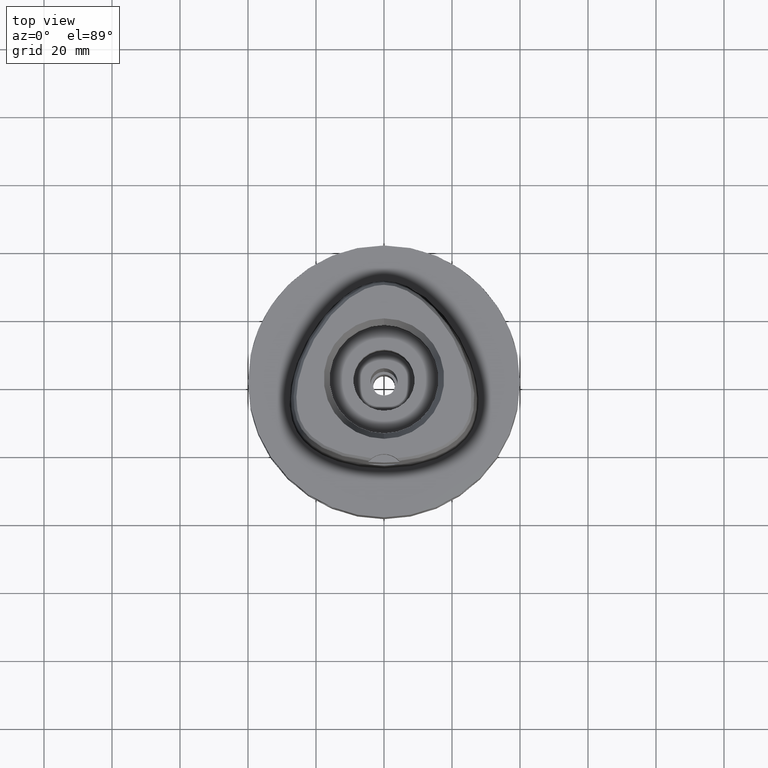
[diagram: clean part render]
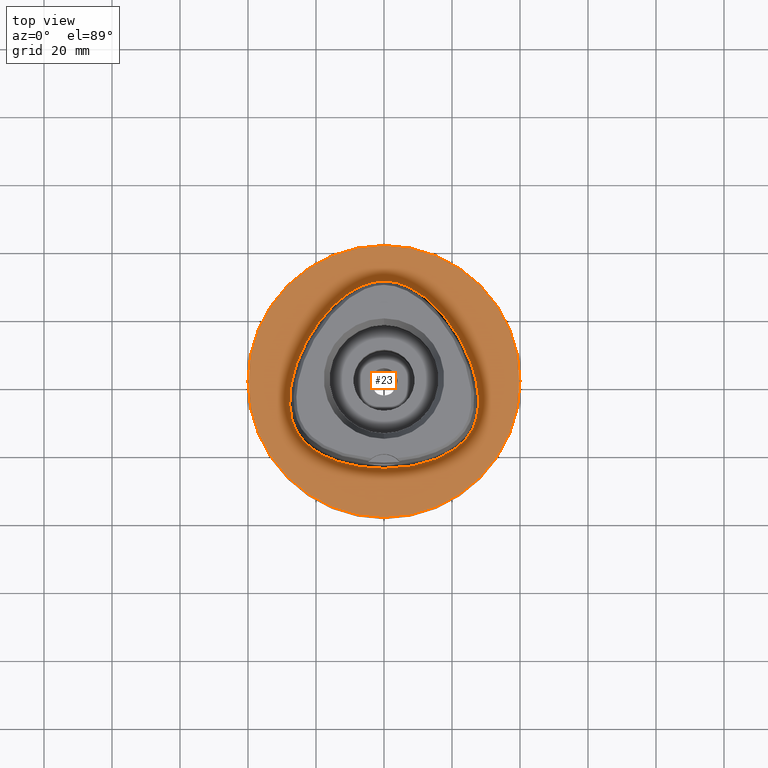
[diagram: same view with one face highlighted and labeled with its STEP entity id]
A machine part, top view. The second image highlights one B-rep face of the part: STEP entity #23.
In plain terms, the highlighted planar face has unit normal (0, 0, -1).
Its self-contained STEP definition (entity closure, byte-faithful):
#23 = ADVANCED_FACE ( 'NONE', ( #2173, #165 ), #3060, .F. ) ;
#165 = FACE_BOUND ( 'NONE', #2454, .T. ) ;
#216 = CARTESIAN_POINT ( 'NONE',  ( -27.10051712365357801, -11.41106443887994537, 2.073622526617933948E-06 ) ) ;
#221 = ORIENTED_EDGE ( 'NONE', *, *, #3537, .F. ) ;
#237 = CARTESIAN_POINT ( 'NONE',  ( 17.75297947113849872, 19.52218746662741466, 2.090457267088074306E-06 ) ) ;
#246 = VERTEX_POINT ( 'NONE', #2687 ) ;
#318 = CARTESIAN_POINT ( 'NONE',  ( -17.75297947146765409, 19.52218746690073914, 2.073622526617933948E-06 ) ) ;
#357 = CARTESIAN_POINT ( 'NONE',  ( 13.21796077093073762, 24.04386714789172075, 2.090457267088074306E-06 ) ) ;
#587 = CARTESIAN_POINT ( 'NONE',  ( 25.63812385324870746, -14.80217770819496437, 2.090457267088074306E-06 ) ) ;
#596 = CARTESIAN_POINT ( 'NONE',  ( -27.85475984545929506, -5.337968751303932891, 2.073622526617933948E-06 ) ) ;
#609 = CARTESIAN_POINT ( 'NONE',  ( 27.85475984503381142, -5.337968751314384974, 2.090457267088074306E-06 ) ) ;
#729 = CARTESIAN_POINT ( 'NONE',  ( -21.42129056213888916, -19.59889644290716504, 2.073622526617933948E-06 ) ) ;
#738 = CARTESIAN_POINT ( 'NONE',  ( 11.74025984109356813, -24.13566401196895228, 2.090457267088074306E-06 ) ) ;
#901 = DIRECTION ( 'NONE',  ( 0.0000000000000000000, 1.000000000000000000, 0.0000000000000000000 ) ) ;
#925 = CARTESIAN_POINT ( 'NONE',  ( 0.0000000000000000000, 1.303514053011999969E-14, 0.0000000000000000000 ) ) ;
#1040 = CARTESIAN_POINT ( 'NONE',  ( -3.149084863313429850, 29.34015619903684424, 2.073622526617933948E-06 ) ) ;
#1090 = CARTESIAN_POINT ( 'NONE',  ( -6.262496924630868378, 28.35083003011367353, 2.073622526617933948E-06 ) ) ;
#1147 = CARTESIAN_POINT ( 'NONE',  ( -11.74025984121052701, -24.13566401238166748, 2.073622526617933948E-06 ) ) ;
#1162 = CIRCLE ( 'NONE', #4510, 40.00000000000000000 ) ;
#1227 = CARTESIAN_POINT ( 'NONE',  ( -6.691850456699824257, -25.24546869848185437, 2.073622526617933948E-06 ) ) ;
#1298 = DIRECTION ( 'NONE',  ( 0.0000000000000000000, 0.0000000000000000000, -1.000000000000000000 ) ) ;
#1380 = CARTESIAN_POINT ( 'NONE',  ( 27.68378748635324271, -8.751933587154015370, 2.090457267088074306E-06 ) ) ;
#1386 = EDGE_CURVE ( 'NONE', #4582, #3107, #4573, .T. ) ;
#1406 = CARTESIAN_POINT ( 'NONE',  ( 22.33885461223361801, 12.89734372375762383, 2.090457267088074306E-06 ) ) ;
#1417 = CARTESIAN_POINT ( 'NONE',  ( -26.34912732462742824, -13.39455076038635539, 2.073622526617933948E-06 ) ) ;
#1436 = CARTESIAN_POINT ( 'NONE',  ( 3.426724478364000331E-11, 29.57499999998999840, 6.809367884367999544E-14 ) ) ;
#1550 = CARTESIAN_POINT ( 'NONE',  ( 6.691850456640912270, -25.24546869806962235, 2.090457267088074306E-06 ) ) ;
#1560 = B_SPLINE_CURVE_WITH_KNOTS ( 'NONE', 3,
 ( #3088, #3893, #1040, #1090, #3790, #2300, #318, #1908, #3502, #4186, #3408, #596, #2204, #216, #1417, #3017, #4612, #4387, #729, #1617, #2379, #1147, #1227, #1991, #3245 ),
 .UNSPECIFIED., .F., .F.,
 ( 4, 1, 1, 1, 1, 1, 1, 1, 1, 1, 1, 1, 1, 1, 1, 1, 1, 1, 1, 1, 1, 1, 4 ),
 ( 0.0000000000000000000, 0.04166666666708999933, 0.08333333333372000551, 0.1250000000004000134, 0.1666666666670000019, 0.2500000000002999823, 0.3333333333335000148, 0.4166666666668999985, 0.4583333333333999837, 0.5000000000001000311, 0.5416666666667999674, 0.5833333333333000637, 0.6250000000000000000, 0.6458333333333000637, 0.6666666666667000474, 0.6875000000000000000, 0.7083333333332000326, 0.7499999999999000799, 0.7916666666666000163, 0.8333333333331000015, 0.8749999999998000488, 0.9166666666664999852, 1.000000000000000000 ),
 .UNSPECIFIED. ) ;
#1617 = CARTESIAN_POINT ( 'NONE',  ( -18.55019646596530691, -21.45394526682857261, 2.073622526617933948E-06 ) ) ;
#1638 = AXIS2_PLACEMENT_3D ( 'NONE', #2986, #3402, #1856 ) ;
#1774 = CARTESIAN_POINT ( 'NONE',  ( 23.43253024981525812, -17.76420406505306104, 2.090457267088074306E-06 ) ) ;
#1798 = CARTESIAN_POINT ( 'NONE',  ( -1.342536938853000165E-11, -25.57499999999999929, 7.442195008403999247E-14 ) ) ;
#1827 = CARTESIAN_POINT ( 'NONE',  ( 3.149084863222216590, 29.34015619862795532, 2.090457267088074306E-06 ) ) ;
#1834 = ORIENTED_EDGE ( 'NONE', *, *, #4956, .F. ) ;
#1856 = DIRECTION ( 'NONE',  ( 0.0000000000000000000, -1.000000000000000000, 0.0000000000000000000 ) ) ;
#1908 = CARTESIAN_POINT ( 'NONE',  ( -22.33885461259460925, 12.89734372397509432, 2.073622526617933948E-06 ) ) ;
#1948 = CARTESIAN_POINT ( 'NONE',  ( 9.304563379270373247, 26.79191401776479253, 2.090457267088074306E-06 ) ) ;
#1991 = CARTESIAN_POINT ( 'NONE',  ( -2.676740182704832272, -25.57499994815897182, 2.073622526617933948E-06 ) ) ;
#2136 = DIRECTION ( 'NONE',  ( 0.0000000000000000000, 0.0000000000000000000, -1.000000000000000000 ) ) ;
#2173 = FACE_OUTER_BOUND ( 'NONE', #4899, .T. ) ;
#2196 = CARTESIAN_POINT ( 'NONE',  ( 27.53737506682186265, -1.765625007907617450, 2.090457267088074306E-06 ) ) ;
#2204 = CARTESIAN_POINT ( 'NONE',  ( -27.68378748676612489, -8.751933587207167520, 2.073622526617933948E-06 ) ) ;
#2300 = CARTESIAN_POINT ( 'NONE',  ( -13.21796077120224311, 24.04386714822484805, 2.073622526617933948E-06 ) ) ;
#2379 = CARTESIAN_POINT ( 'NONE',  ( -15.29776364397092081, -22.96525385785016482, 2.073622526617933948E-06 ) ) ;
#2454 = EDGE_LOOP ( 'NONE', ( #4176, #221 ) ) ;
#2532 = DIRECTION ( 'NONE',  ( 0.0000000000000000000, -1.000000000000000000, 0.0000000000000000000 ) ) ;
#2562 = CARTESIAN_POINT ( 'NONE',  ( 21.42129056188569081, -19.59889644256973895, 2.090457267088074306E-06 ) ) ;
#2607 = CARTESIAN_POINT ( 'NONE',  ( 24.77458489275624487, -16.12173825023322493, 2.090457267088074306E-06 ) ) ;
#2687 = CARTESIAN_POINT ( 'NONE',  ( 3.426724478364000331E-11, 29.57499999998999840, 6.809367884367999544E-14 ) ) ;
#2732 = AXIS2_PLACEMENT_3D ( 'NONE', #3774, #1298, #901 ) ;
#2986 = CARTESIAN_POINT ( 'NONE',  ( 0.0000000000000000000, 1.224646799146999965E-14, 0.0000000000000000000 ) ) ;
#3017 = CARTESIAN_POINT ( 'NONE',  ( -25.63812385360891000, -14.80217770840254943, 2.073622526617933948E-06 ) ) ;
#3060 = PLANE ( 'NONE',  #1638 ) ;
#3088 = CARTESIAN_POINT ( 'NONE',  ( 3.426724478364000331E-11, 29.57499999998999840, 6.809367884367999544E-14 ) ) ;
#3107 = VERTEX_POINT ( 'NONE', #3110 ) ;
#3110 = CARTESIAN_POINT ( 'NONE',  ( 0.0000000000000000000, -40.00000000000000000, 0.0000000000000000000 ) ) ;
#3123 = CARTESIAN_POINT ( 'NONE',  ( 2.676740182666231593, -25.57499994773848684, 2.090457267088073882E-06 ) ) ;
#3245 = CARTESIAN_POINT ( 'NONE',  ( -1.342536938853000165E-11, -25.57499999999999929, 7.442195008403999247E-14 ) ) ;
#3402 = DIRECTION ( 'NONE',  ( 0.0000000000000000000, 0.0000000000000000000, -1.000000000000000000 ) ) ;
#3408 = CARTESIAN_POINT ( 'NONE',  ( -27.53737506724284145, -1.765625007843980132, 2.073622526617933948E-06 ) ) ;
#3421 = CARTESIAN_POINT ( 'NONE',  ( 27.10051712325038409, -11.41106443875791498, 2.090457267088074306E-06 ) ) ;
#3494 = B_SPLINE_CURVE_WITH_KNOTS ( 'NONE', 3,
 ( #3515, #3123, #1550, #738, #4177, #4965, #2562, #1774, #2607, #587, #5112, #3421, #1380, #609, #2196, #4200, #4153, #1406, #237, #357, #1948, #3809, #1827, #5020, #1436 ),
 .UNSPECIFIED., .F., .F.,
 ( 4, 1, 1, 1, 1, 1, 1, 1, 1, 1, 1, 1, 1, 1, 1, 1, 1, 1, 1, 1, 1, 1, 4 ),
 ( 0.0000000000000000000, 0.08333333333342000937, 0.1250000000001000033, 0.1666666666667000196, 0.2083333333333000081, 0.2500000000000000000, 0.2916666666666999919, 0.3125000000000000000, 0.3333333333332000326, 0.3541666666666000163, 0.3749999999998999689, 0.4166666666666000163, 0.4583333333332000326, 0.4999999999998999689, 0.5416666666664999852, 0.5833333333331000015, 0.6666666666664999852, 0.7499999999997000177, 0.8333333333329999704, 0.8749999999995999866, 0.9166666666663000340, 0.9583333333329000503, 1.000000000000000000 ),
 .UNSPECIFIED. ) ;
#3502 = CARTESIAN_POINT ( 'NONE',  ( -25.20914245169377210, 6.827421855413676965, 2.073622526617933948E-06 ) ) ;
#3515 = CARTESIAN_POINT ( 'NONE',  ( -1.342536938853000165E-11, -25.57499999999999929, 7.442195008403999247E-14 ) ) ;
#3532 = VERTEX_POINT ( 'NONE', #1798 ) ;
#3537 = EDGE_CURVE ( 'NONE', #3532, #246, #3494, .T. ) ;
#3689 = CARTESIAN_POINT ( 'NONE',  ( 0.0000000000000000000, 40.00000000000000000, 0.0000000000000000000 ) ) ;
#3774 = CARTESIAN_POINT ( 'NONE',  ( 0.0000000000000000000, 1.303514053011999969E-14, 0.0000000000000000000 ) ) ;
#3790 = CARTESIAN_POINT ( 'NONE',  ( -9.304563379490279118, 26.79191401813056572, 2.073622526617933948E-06 ) ) ;
#3809 = CARTESIAN_POINT ( 'NONE',  ( 6.262496924466881332, 28.35083002972409716, 2.090457267088074306E-06 ) ) ;
#3893 = CARTESIAN_POINT ( 'NONE',  ( -1.049694954293143967, 29.57499994816187083, 2.073622526617933948E-06 ) ) ;
#4153 = CARTESIAN_POINT ( 'NONE',  ( 25.20914245129345943, 6.827421855253429150, 2.090457267088074306E-06 ) ) ;
#4176 = ORIENTED_EDGE ( 'NONE', *, *, #4207, .F. ) ;
#4177 = CARTESIAN_POINT ( 'NONE',  ( 15.29776364381875808, -22.96525385745856696, 2.090457267088074306E-06 ) ) ;
#4186 = CARTESIAN_POINT ( 'NONE',  ( -26.77222809252156566, 1.900468736675205106, 2.073622526617933948E-06 ) ) ;
#4200 = CARTESIAN_POINT ( 'NONE',  ( 26.77222809211778554, 1.900468736567242578, 2.090457267088074306E-06 ) ) ;
#4207 = EDGE_CURVE ( 'NONE', #246, #3532, #1560, .T. ) ;
#4387 = CARTESIAN_POINT ( 'NONE',  ( -23.43253025011629020, -17.76420406534650098, 2.073622526617933948E-06 ) ) ;
#4462 = ORIENTED_EDGE ( 'NONE', *, *, #1386, .F. ) ;
#4510 = AXIS2_PLACEMENT_3D ( 'NONE', #925, #2136, #2532 ) ;
#4573 = CIRCLE ( 'NONE', #2732, 40.00000000000000000 ) ;
#4582 = VERTEX_POINT ( 'NONE', #3689 ) ;
#4612 = CARTESIAN_POINT ( 'NONE',  ( -24.77458489309615075, -16.12173825049161024, 2.073622526617933948E-06 ) ) ;
#4899 = EDGE_LOOP ( 'NONE', ( #4462, #1834 ) ) ;
#4956 = EDGE_CURVE ( 'NONE', #3107, #4582, #1162, .T. ) ;
#4965 = CARTESIAN_POINT ( 'NONE',  ( 18.55019646576445069, -21.45394526645394961, 2.090457267088074306E-06 ) ) ;
#5020 = CARTESIAN_POINT ( 'NONE',  ( 1.049694954267464952, 29.57499994773816354, 2.090457267088074306E-06 ) ) ;
#5112 = CARTESIAN_POINT ( 'NONE',  ( 26.34912732425035031, -13.39455076022163915, 2.090457267088074306E-06 ) ) ;